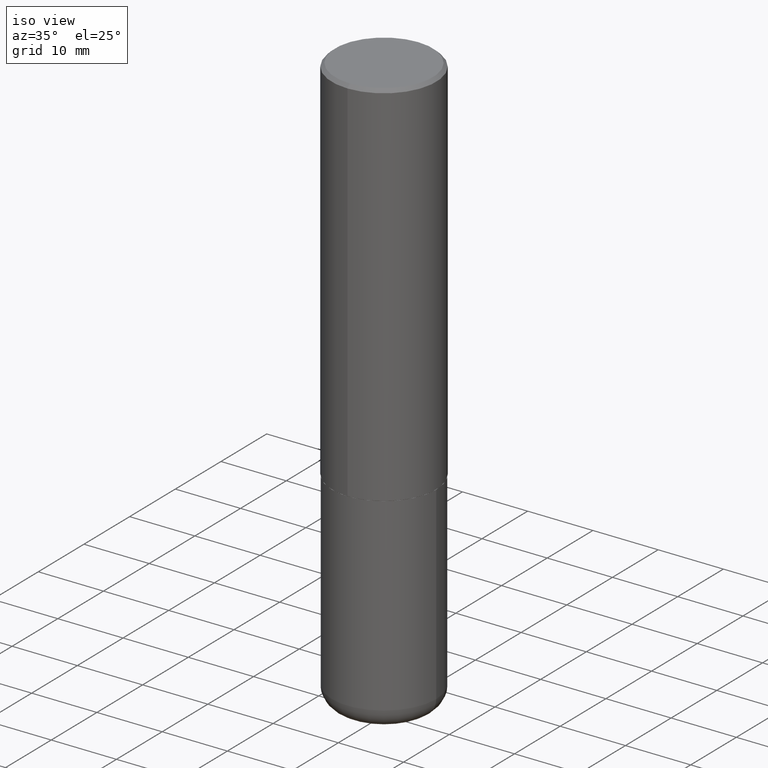
[diagram: clean part render]
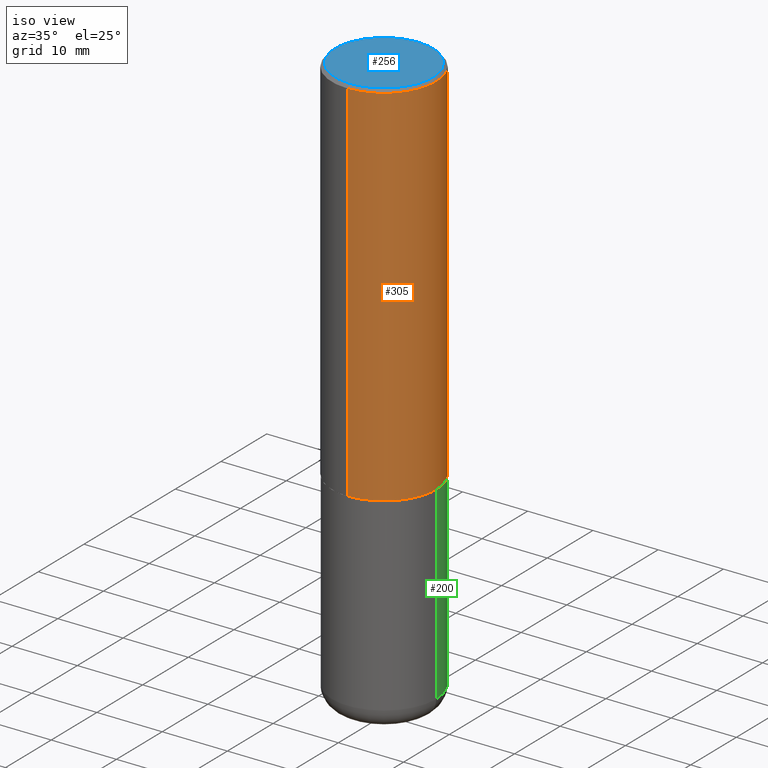
[diagram: same view with three faces highlighted in distinct colors, each labeled with its STEP entity id]
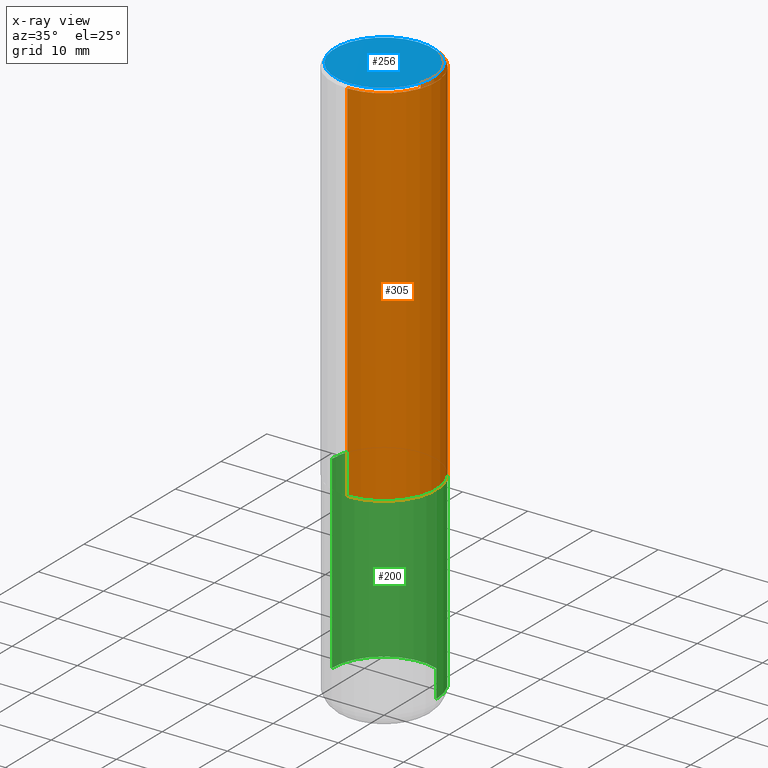
[diagram: x-ray of the same camera — body ghosted, the three highlighted faces saturated]
A machine part, iso view with three faces highlighted in distinct colors.
The next image is the same camera in x-ray (body ghosted, the three faces saturated) — at least one of them is partly hidden behind the body in this view.
Their STEP definitions:

[orange] entity #305 — the highlighted cylindrical surface (partial cylindrical patch) has radius 7.9997 mm, axis along (-0, 0, 1).
#18 = DIRECTION ( 'NONE',  ( -6.982962677686265922E-15, -1.000000000000000000, 3.469564049740290009E-15 ) ) ;
#21 = LINE ( 'NONE', #196, #251 ) ;
#31 = VECTOR ( 'NONE', #101, 39.37007874015748143 ) ;
#53 = AXIS2_PLACEMENT_3D ( 'NONE', #89, #269, #329 ) ;
#58 = VERTEX_POINT ( 'NONE', #322 ) ;
#63 = CARTESIAN_POINT ( 'NONE',  ( 2.237854346276463595E-15, 0.3149499999999924027, -2.243100000000000538 ) ) ;
#88 = ORIENTED_EDGE ( 'NONE', *, *, #224, .F. ) ;
#89 = CARTESIAN_POINT ( 'NONE',  ( 0.000000000000000000, 0.000000000000000000, 0.000000000000000000 ) ) ;
#101 = DIRECTION ( 'NONE',  ( -2.446102043983075148E-29, 3.490574506274840456E-15, 1.000000000000000000 ) ) ;
#112 = EDGE_CURVE ( 'NONE', #211, #418, #266, .T. ) ;
#117 = DIRECTION ( 'NONE',  ( -2.446102043983075148E-29, 3.490574506274840456E-15, 1.000000000000000000 ) ) ;
#126 = CYLINDRICAL_SURFACE ( 'NONE', #53, 0.3149500000000000632 ) ;
#148 = AXIS2_PLACEMENT_3D ( 'NONE', #255, #374, #18 ) ;
#151 = DIRECTION ( 'NONE',  ( -6.982962677686264344E-15, -1.000000000000000000, 3.496670018878890283E-15 ) ) ;
#155 = EDGE_CURVE ( 'NONE', #58, #191, #351, .T. ) ;
#191 = VERTEX_POINT ( 'NONE', #313 ) ;
#196 = CARTESIAN_POINT ( 'NONE',  ( -2.199284095337289871E-15, -0.3149500000000000632, 1.099356440751261260E-15 ) ) ;
#204 = CARTESIAN_POINT ( 'NONE',  ( 2.237854346276435590E-15, 0.3149500000000000632, -1.099356440751261260E-15 ) ) ;
#211 = VERTEX_POINT ( 'NONE', #225 ) ;
#224 = EDGE_CURVE ( 'NONE', #211, #58, #21, .T. ) ;
#225 = CARTESIAN_POINT ( 'NONE',  ( -2.199284095337236228E-15, -0.3149500000000081124, -2.243099999999998317 ) ) ;
#251 = VECTOR ( 'NONE', #384, 39.37007874015748143 ) ;
#255 = CARTESIAN_POINT ( 'NONE',  ( 5.486851494858434265E-29, -7.829707675025093274E-15, -2.243099999999999206 ) ) ;
#266 = CIRCLE ( 'NONE', #148, 0.3149500000000002853 ) ;
#269 = DIRECTION ( 'NONE',  ( -2.446102043983075148E-29, 3.490574506274840456E-15, 1.000000000000000000 ) ) ;
#285 = LINE ( 'NONE', #204, #31 ) ;
#302 = FACE_OUTER_BOUND ( 'NONE', #304, .T. ) ;
#304 = EDGE_LOOP ( 'NONE', ( #330, #363, #388, #88 ) ) ;
#305 = ADVANCED_FACE ( 'NONE', ( #302 ), #126, .T. ) ;
#313 = CARTESIAN_POINT ( 'NONE',  ( 2.199284095337288688E-15, 0.3149499999999997857, -0.02000000000000116962 ) ) ;
#322 = CARTESIAN_POINT ( 'NONE',  ( -2.160713844398142179E-15, -0.3149499999999999522, -0.01999999999999896652 ) ) ;
#329 = DIRECTION ( 'NONE',  ( -6.982962677686265922E-15, -1.000000000000000000, 3.490574506274840456E-15 ) ) ;
#330 = ORIENTED_EDGE ( 'NONE', *, *, #112, .T. ) ;
#333 = AXIS2_PLACEMENT_3D ( 'NONE', #406, #117, #151 ) ;
#351 = CIRCLE ( 'NONE', #333, 0.3149499999999998967 ) ;
#363 = ORIENTED_EDGE ( 'NONE', *, *, #389, .T. ) ;
#374 = DIRECTION ( 'NONE',  ( -2.446102043983075148E-29, 3.490574506274840456E-15, 1.000000000000000000 ) ) ;
#384 = DIRECTION ( 'NONE',  ( -2.446102043983075148E-29, 3.490574506274840456E-15, 1.000000000000000000 ) ) ;
#388 = ORIENTED_EDGE ( 'NONE', *, *, #155, .F. ) ;
#389 = EDGE_CURVE ( 'NONE', #418, #191, #285, .T. ) ;
#406 = CARTESIAN_POINT ( 'NONE',  ( 4.892204087966167602E-31, -6.981149012549705614E-17, -0.02000000000000006981 ) ) ;
#418 = VERTEX_POINT ( 'NONE', #63 ) ;

[blue] entity #256 — the highlighted planar face has unit normal (0, -0, -1).
#5 = EDGE_CURVE ( 'NONE', #61, #344, #300, .T. ) ;
#23 = DIRECTION ( 'NONE',  ( -6.982962677686265922E-15, -1.000000000000000000, 3.490574506274840456E-15 ) ) ;
#30 = FACE_OUTER_BOUND ( 'NONE', #97, .T. ) ;
#50 = DIRECTION ( 'NONE',  ( 2.446102043983074868E-29, -3.490574506274840456E-15, -1.000000000000000000 ) ) ;
#61 = VERTEX_POINT ( 'NONE', #248 ) ;
#67 = CARTESIAN_POINT ( 'NONE',  ( -6.780248536777034301E-45, 9.675378321561535985E-31, 2.771858415905051370E-16 ) ) ;
#97 = EDGE_LOOP ( 'NONE', ( #247, #280 ) ) ;
#119 = PLANE ( 'NONE',  #340 ) ;
#121 = CARTESIAN_POINT ( 'NONE',  ( 2.059624841783561302E-15, 0.2949499999999996014, -8.909520298305101196E-16 ) ) ;
#162 = AXIS2_PLACEMENT_3D ( 'NONE', #67, #205, #398 ) ;
#165 = DIRECTION ( 'NONE',  ( 6.982962677686265922E-15, 1.000000000000000000, -3.490574506274840456E-15 ) ) ;
#167 = CARTESIAN_POINT ( 'NONE',  ( -6.780248536777034301E-45, 9.675378321561535985E-31, 2.771858415905051370E-16 ) ) ;
#194 = CARTESIAN_POINT ( 'NONE',  ( -2.092108864420426059E-15, -0.2949499999999996014, 1.306730792216267924E-15 ) ) ;
#205 = DIRECTION ( 'NONE',  ( -2.446102043983075148E-29, 3.490574506274840456E-15, 1.000000000000000000 ) ) ;
#247 = ORIENTED_EDGE ( 'NONE', *, *, #5, .T. ) ;
#248 = CARTESIAN_POINT ( 'NONE',  ( 2.129454468560424995E-15, 0.2949499999999996014, -7.523591090352575511E-16 ) ) ;
#253 = EDGE_CURVE ( 'NONE', #344, #61, #397, .T. ) ;
#256 = ADVANCED_FACE ( 'NONE', ( #30 ), #119, .F. ) ;
#280 = ORIENTED_EDGE ( 'NONE', *, *, #253, .T. ) ;
#300 = CIRCLE ( 'NONE', #162, 0.2949499999999996014 ) ;
#340 = AXIS2_PLACEMENT_3D ( 'NONE', #121, #50, #165 ) ;
#344 = VERTEX_POINT ( 'NONE', #194 ) ;
#379 = AXIS2_PLACEMENT_3D ( 'NONE', #167, #413, #23 ) ;
#397 = CIRCLE ( 'NONE', #379, 0.2949499999999996014 ) ;
#398 = DIRECTION ( 'NONE',  ( -6.982962677686265922E-15, -1.000000000000000000, 3.490574506274840456E-15 ) ) ;
#413 = DIRECTION ( 'NONE',  ( -2.446102043983075148E-29, 3.490574506274840456E-15, 1.000000000000000000 ) ) ;

[green] entity #200 — the highlighted cylindrical surface (partial cylindrical patch) has radius 7.9997 mm, axis along (-0, 0, 1).
#14 = CARTESIAN_POINT ( 'NONE',  ( 5.487876547960064752E-29, -7.835233272497900762E-15, -2.244099999999999540 ) ) ;
#20 = CARTESIAN_POINT ( 'NONE',  ( 0.3149500000000000077, -1.003451736783519063E-14, -2.244099999999999540 ) ) ;
#26 = LINE ( 'NONE', #160, #71 ) ;
#29 = CARTESIAN_POINT ( 'NONE',  ( -0.3149500000000000077, -7.590491048500074682E-15, -2.244099999999999540 ) ) ;
#39 = ORIENTED_EDGE ( 'NONE', *, *, #231, .F. ) ;
#65 = DIRECTION ( 'NONE',  ( -2.445468806185136597E-29, 3.491481338843145583E-15, 1.000000000000000000 ) ) ;
#71 = VECTOR ( 'NONE', #292, 39.37007874015748143 ) ;
#78 = AXIS2_PLACEMENT_3D ( 'NONE', #14, #65, #365 ) ;
#102 = VERTEX_POINT ( 'NONE', #20 ) ;
#104 = EDGE_LOOP ( 'NONE', ( #381, #138, #272, #39 ) ) ;
#131 = AXIS2_PLACEMENT_3D ( 'NONE', #214, #375, #317 ) ;
#134 = EDGE_CURVE ( 'NONE', #361, #270, #275, .T. ) ;
#138 = ORIENTED_EDGE ( 'NONE', *, *, #190, .T. ) ;
#153 = LINE ( 'NONE', #288, #289 ) ;
#158 = DIRECTION ( 'NONE',  ( -2.445468806185136597E-29, 3.491481338843145583E-15, 1.000000000000000000 ) ) ;
#160 = CARTESIAN_POINT ( 'NONE',  ( 0.3149500000000000077, -2.199284095337289871E-15, 1.535751875536930130E-29 ) ) ;
#169 = AXIS2_PLACEMENT_3D ( 'NONE', #187, #158, #264 ) ;
#180 = DIRECTION ( 'NONE',  ( -2.445468806185136877E-29, 3.491481338843145188E-15, 1.000000000000000000 ) ) ;
#187 = CARTESIAN_POINT ( 'NONE',  ( 0.000000000000000000, 0.000000000000000000, 0.000000000000000000 ) ) ;
#190 = EDGE_CURVE ( 'NONE', #270, #309, #153, .T. ) ;
#200 = ADVANCED_FACE ( 'NONE', ( #221 ), #350, .T. ) ;
#214 = CARTESIAN_POINT ( 'NONE',  ( 8.279868283981634472E-29, -1.182145751705512057E-14, -3.385799999999999699 ) ) ;
#221 = FACE_OUTER_BOUND ( 'NONE', #104, .T. ) ;
#230 = CARTESIAN_POINT ( 'NONE',  ( -0.3149499999999998967, -9.583603170778684587E-15, -3.385799999999999699 ) ) ;
#231 = EDGE_CURVE ( 'NONE', #361, #102, #26, .T. ) ;
#264 = DIRECTION ( 'NONE',  ( 1.000000000000000000, -6.982962677686266711E-15, 4.876176775795936353E-29 ) ) ;
#270 = VERTEX_POINT ( 'NONE', #230 ) ;
#272 = ORIENTED_EDGE ( 'NONE', *, *, #399, .F. ) ;
#275 = CIRCLE ( 'NONE', #131, 0.3149500000000000077 ) ;
#283 = CIRCLE ( 'NONE', #78, 0.3149500000000000077 ) ;
#288 = CARTESIAN_POINT ( 'NONE',  ( -0.3149500000000000077, 2.237854346276435590E-15, -1.549218606675782676E-29 ) ) ;
#289 = VECTOR ( 'NONE', #180, 39.37007874015748143 ) ;
#292 = DIRECTION ( 'NONE',  ( -2.445468806185136877E-29, 3.491481338843145188E-15, 1.000000000000000000 ) ) ;
#309 = VERTEX_POINT ( 'NONE', #29 ) ;
#317 = DIRECTION ( 'NONE',  ( 1.000000000000000000, -6.982962677686269866E-15, 0.000000000000000000 ) ) ;
#350 = CYLINDRICAL_SURFACE ( 'NONE', #169, 0.3149500000000000077 ) ;
#361 = VERTEX_POINT ( 'NONE', #416 ) ;
#365 = DIRECTION ( 'NONE',  ( 1.000000000000000000, -6.982962677686266711E-15, 0.000000000000000000 ) ) ;
#375 = DIRECTION ( 'NONE',  ( -2.445468806185136597E-29, 3.491481338843145583E-15, 1.000000000000000000 ) ) ;
#381 = ORIENTED_EDGE ( 'NONE', *, *, #134, .T. ) ;
#399 = EDGE_CURVE ( 'NONE', #102, #309, #283, .T. ) ;
#416 = CARTESIAN_POINT ( 'NONE',  ( 0.3149499999999998967, -1.402074161239241202E-14, -3.385799999999999699 ) ) ;